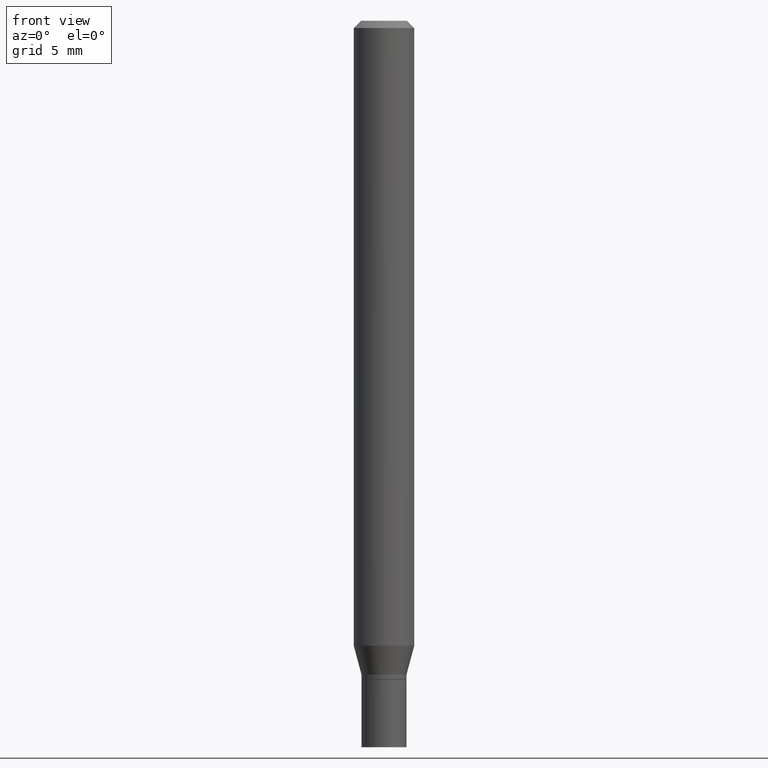
[diagram: clean part render]
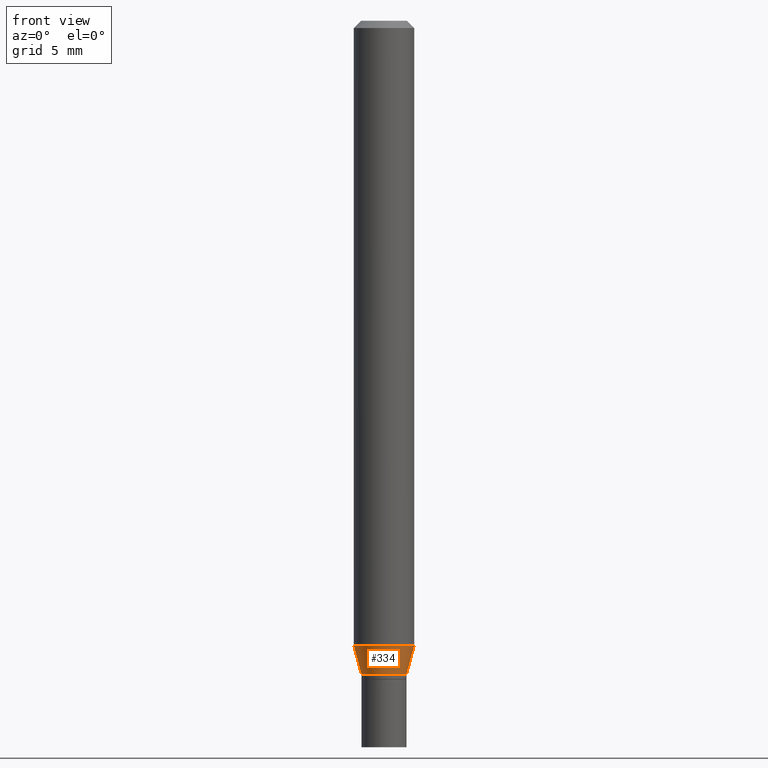
[diagram: same view with one face highlighted and labeled with its STEP entity id]
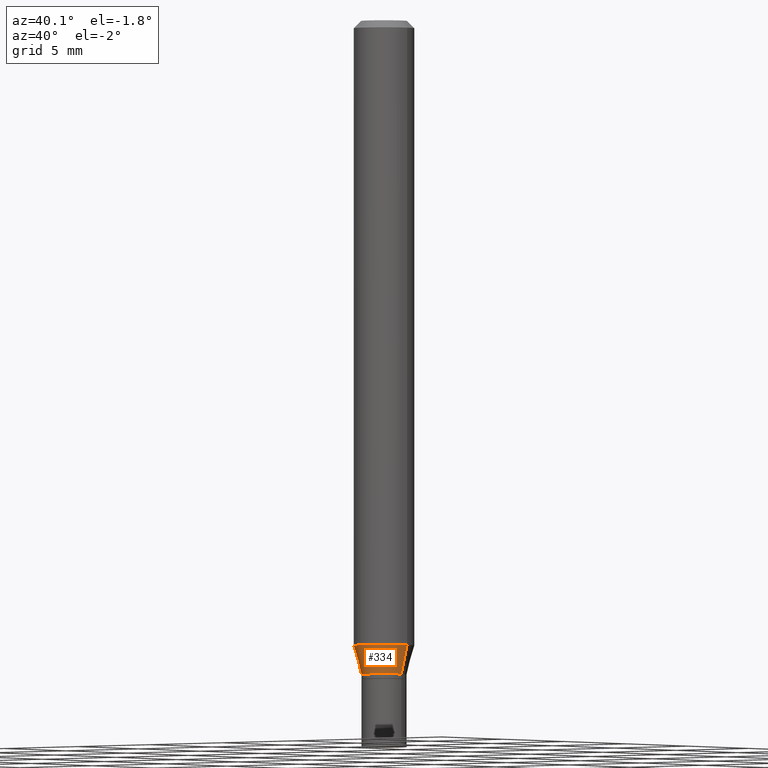
[diagram: same view with one face highlighted and labeled with its STEP entity id]
A machine part, front view. The second image highlights one B-rep face of the part: STEP entity #334.
A second angle (auxiliary view) of the same face is appended — the face is thin or edge-on in the first view.
In plain terms, the highlighted conical surface has half-angle 15 deg.
Its self-contained STEP definition (entity closure, byte-faithful):
#6 = CARTESIAN_POINT ( 'NONE',  ( 3.155357067021810605E-29, -4.505013635434386600E-15, -1.290287187078897890 ) ) ;
#7 = EDGE_CURVE ( 'NONE', #360, #13, #111, .T. ) ;
#9 = DIRECTION ( 'NONE',  ( 1.000000000000000000, -6.982962677686269866E-15, 0.000000000000000000 ) ) ;
#11 = ORIENTED_EDGE ( 'NONE', *, *, #7, .F. ) ;
#13 = VERTEX_POINT ( 'NONE', #392 ) ;
#34 = CARTESIAN_POINT ( 'NONE',  ( 0.04649999999999993722, -5.038207571950657304E-15, -1.350000000000000089 ) ) ;
#42 = VERTEX_POINT ( 'NONE', #34 ) ;
#54 = AXIS2_PLACEMENT_3D ( 'NONE', #419, #226, #131 ) ;
#74 = DIRECTION ( 'NONE',  ( -2.445468806185136597E-29, 3.491481338843145583E-15, 1.000000000000000000 ) ) ;
#96 = CONICAL_SURFACE ( 'NONE', #216, 0.04649999999999993722, 0.2617993877991500740 ) ;
#107 = EDGE_CURVE ( 'NONE', #42, #145, #387, .T. ) ;
#111 = LINE ( 'NONE', #243, #253 ) ;
#117 = CARTESIAN_POINT ( 'NONE',  ( -0.04649999999999993722, -4.222010930447061653E-15, -1.350000000000000089 ) ) ;
#128 = EDGE_CURVE ( 'NONE', #360, #42, #413, .T. ) ;
#131 = DIRECTION ( 'NONE',  ( 1.000000000000000000, -6.982962677686269866E-15, 0.000000000000000000 ) ) ;
#145 = VERTEX_POINT ( 'NONE', #304 ) ;
#159 = DIRECTION ( 'NONE',  ( 0.2588190451025213501, 1.565188264969621968E-15, 0.9659258262890682012 ) ) ;
#175 = DIRECTION ( 'NONE',  ( -2.445468806185136597E-29, 3.491481338843145583E-15, 1.000000000000000000 ) ) ;
#207 = EDGE_CURVE ( 'NONE', #13, #145, #322, .T. ) ;
#216 = AXIS2_PLACEMENT_3D ( 'NONE', #395, #175, #9 ) ;
#226 = DIRECTION ( 'NONE',  ( -2.445468806185136597E-29, 3.491481338843145583E-15, 1.000000000000000000 ) ) ;
#243 = CARTESIAN_POINT ( 'NONE',  ( -0.04649999999999993722, -4.383097435309800899E-15, -1.350000000000000089 ) ) ;
#246 = ORIENTED_EDGE ( 'NONE', *, *, #107, .T. ) ;
#253 = VECTOR ( 'NONE', #386, 39.37007874015747433 ) ;
#285 = ORIENTED_EDGE ( 'NONE', *, *, #207, .F. ) ;
#304 = CARTESIAN_POINT ( 'NONE',  ( 0.06250000000000000000, -4.941448802789779058E-15, -1.290287187078897890 ) ) ;
#322 = CIRCLE ( 'NONE', #422, 0.06250000000000000000 ) ;
#332 = VECTOR ( 'NONE', #159, 39.37007874015747433 ) ;
#334 = ADVANCED_FACE ( 'NONE', ( #441 ), #96, .T. ) ;
#349 = CARTESIAN_POINT ( 'NONE',  ( 0.04649999999999993722, -5.038207571950657304E-15, -1.350000000000000089 ) ) ;
#360 = VERTEX_POINT ( 'NONE', #117 ) ;
#386 = DIRECTION ( 'NONE',  ( -0.2588190451025213501, 5.211531920934551042E-15, 0.9659258262890682012 ) ) ;
#387 = LINE ( 'NONE', #349, #332 ) ;
#392 = CARTESIAN_POINT ( 'NONE',  ( -0.06250000000000000000, -4.060924425584323984E-15, -1.290287187078897890 ) ) ;
#395 = CARTESIAN_POINT ( 'NONE',  ( 3.301382888349935078E-29, -4.713499807438246596E-15, -1.350000000000000089 ) ) ;
#400 = EDGE_LOOP ( 'NONE', ( #11, #427, #246, #285 ) ) ;
#413 = CIRCLE ( 'NONE', #54, 0.04649999999999993722 ) ;
#419 = CARTESIAN_POINT ( 'NONE',  ( 3.301382888349935078E-29, -4.713499807438246596E-15, -1.350000000000000089 ) ) ;
#422 = AXIS2_PLACEMENT_3D ( 'NONE', #6, #74, #440 ) ;
#427 = ORIENTED_EDGE ( 'NONE', *, *, #128, .T. ) ;
#440 = DIRECTION ( 'NONE',  ( 1.000000000000000000, -6.982962677686262766E-15, 0.000000000000000000 ) ) ;
#441 = FACE_OUTER_BOUND ( 'NONE', #400, .T. ) ;